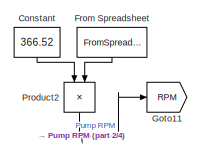
[diagram: root canvas - part 1/4, top left region]
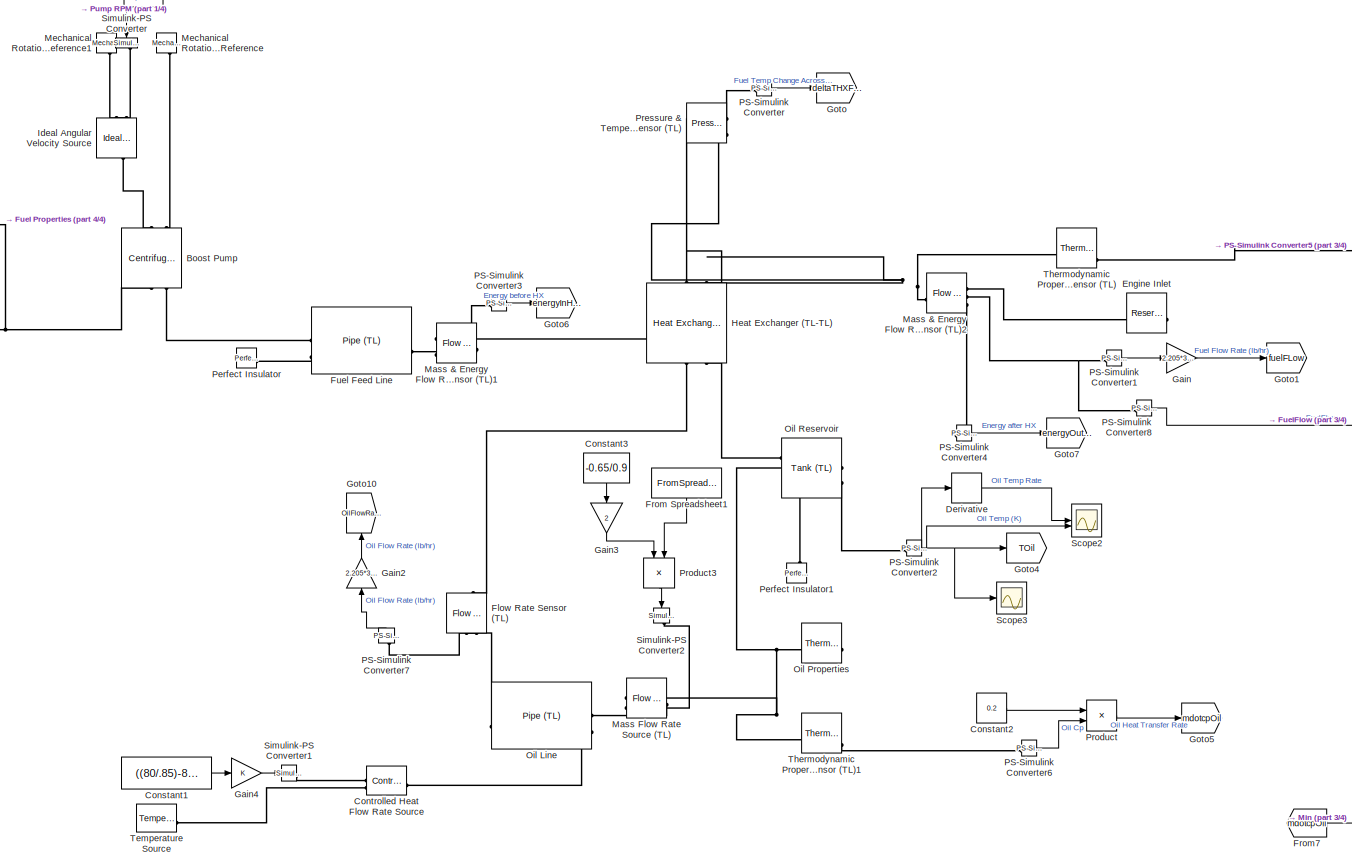
[diagram: root canvas - part 2/4, center side, full height]
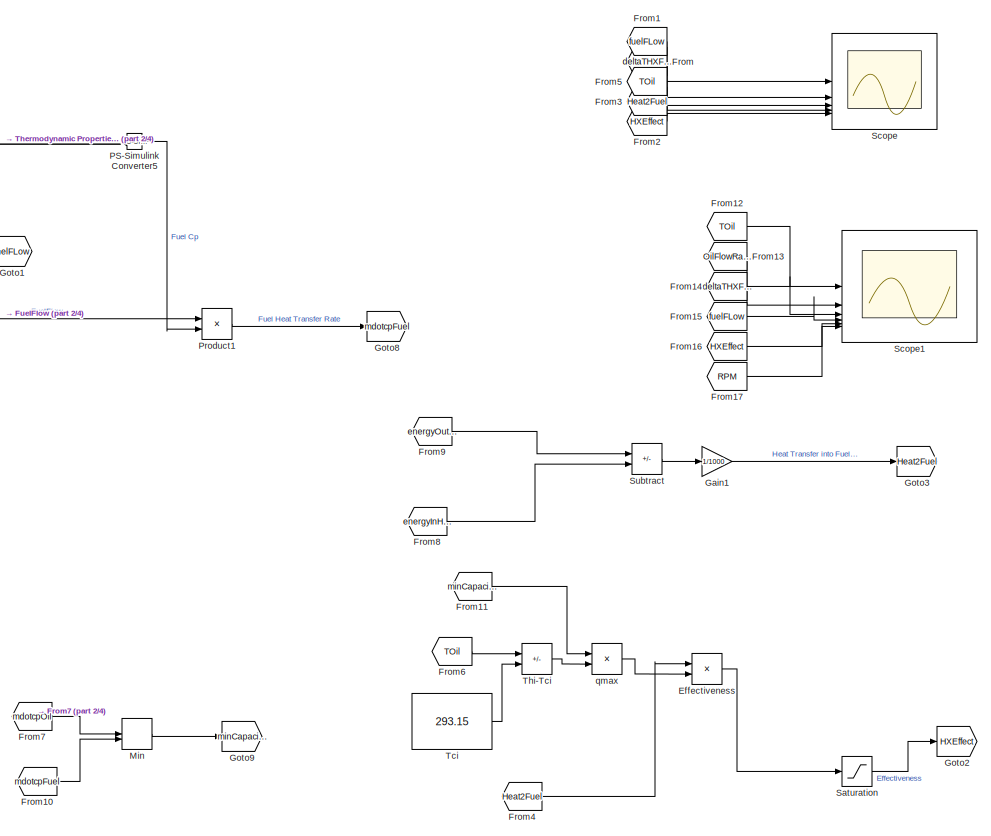
[diagram: root canvas - part 3/4, right side, full height]
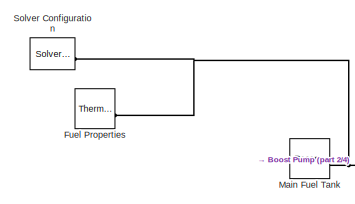
[diagram: root canvas - part 4/4, middle left region]
MODEL slx_5ee96331e3f0
KIND model
CONFIG AbsTol = auto
CONFIG EnableMultiTasking = off
CONFIG FixedStep = auto
CONFIG MaxStep = auto
CONFIG MinStep = auto
CONFIG RelTol = 1e-3
CONFIG SampleTimeConstraint = Unconstrained
CONFIG SolverName = VariableStepAuto
CONFIG StartTime = 0.0
CONFIG StopTime = 3*3600
BLOCK [Reference] Boost Pump  REF=SimscapeFluids_lib/Thermal Liquid/Pumps & Motors/Centrifugal Pump
(TL)
  NameLocation = right
  SourceBlock = SimscapeFluids_lib/Thermal Liquid/Pumps & Motors/Centrifugal Pump\n(TL)
  SourceType = Centrifugal Pump\n(TL)
BLOCK [Constant] Constant
  NameLocation = left
  Value = 366.52
BLOCK [Constant] Constant1
  Value = ((80/.85)-80)*0.8*1000
BLOCK [Constant] Constant2
  Value = 0.2
BLOCK [Constant] Constant3
  NameLocation = left
  Value = -0.65/0.9
BLOCK [Reference] Controlled Heat Flow Rate Source  REF=fl_lib/Thermal/Thermal Sources/Controlled Heat Flow
Rate Source
  SourceBlock = fl_lib/Thermal/Thermal Sources/Controlled Heat Flow\nRate Source
  SourceType = Controlled Heat Flow\nRate Source
BLOCK [Derivative] Derivative
BLOCK [Product] Effectiveness
  Inputs = */
BLOCK [Reference] Engine Inlet  REF=fl_lib/Thermal Liquid/Elements/Reservoir (TL)
  NameLocation = top
  SourceBlock = fl_lib/Thermal Liquid/Elements/Reservoir (TL)
  SourceType = Reservoir (TL)
BLOCK [Reference] Flow Rate Sensor (TL)  REF=fl_lib/Thermal Liquid/Sensors/Flow Rate Sensor
(TL)
  NameLocation = left
  SourceBlock = fl_lib/Thermal Liquid/Sensors/Flow Rate Sensor\n(TL)
  SourceType = Flow Rate Sensor\n(TL)
BLOCK [From] From
  GotoTag = deltaTHXFuel
BLOCK [FromSpreadsheet] From Spreadsheet
  FileName = RPM_data.xls
  NameLocation = left
BLOCK [FromSpreadsheet] From Spreadsheet1
  FileName = RPM_data.xls
  NameLocation = left
BLOCK [From] From1
  GotoTag = fuelFLow
BLOCK [From] From10
  GotoTag = mdotcpFuel
BLOCK [From] From11
  GotoTag = minCapacitance
BLOCK [From] From12
  GotoTag = TOil
BLOCK [From] From13
  GotoTag = OilFlowRate
BLOCK [From] From14
  GotoTag = deltaTHXFuel
BLOCK [From] From15
  GotoTag = fuelFLow
BLOCK [From] From16
  GotoTag = HXEffect
BLOCK [From] From17
  GotoTag = RPM
BLOCK [From] From2
  GotoTag = HXEffect
BLOCK [From] From3
  GotoTag = Heat2Fuel
BLOCK [From] From4
  GotoTag = Heat2Fuel
BLOCK [From] From5
  GotoTag = TOil
BLOCK [From] From6
  GotoTag = TOil
BLOCK [From] From7
  GotoTag = mdotcpOil
BLOCK [From] From8
  GotoTag = energyInHXFuel
BLOCK [From] From9
  GotoTag = energyOutHXFuel
BLOCK [Reference] Fuel Feed Line  REF=fl_lib/Thermal Liquid/Elements/Pipe (TL)
  SourceBlock = fl_lib/Thermal Liquid/Elements/Pipe (TL)
  SourceType = Pipe (TL)
BLOCK [Reference] Fuel Properties  REF=SimscapeFluids_lib/Thermal Liquid/Utilities/Thermal Liquid
Properties (TL)
  SourceBlock = SimscapeFluids_lib/Thermal Liquid/Utilities/Thermal Liquid\nProperties (TL)
  SourceType = Thermal Liquid\nProperties (TL)
BLOCK [Gain] Gain
  Gain = 2.205*3600
BLOCK [Gain] Gain1
  Gain = 1/1000
BLOCK [Gain] Gain2
  Gain = 2.205*3600
  NameLocation = right
BLOCK [Gain] Gain3
  Gain = 2
  NameLocation = left
BLOCK [Gain] Gain4
BLOCK [Goto] Goto
  GotoTag = deltaTHXFuel
BLOCK [Goto] Goto1
  GotoTag = fuelFLow
BLOCK [Goto] Goto10
  GotoTag = OilFlowRate
  NameLocation = right
BLOCK [Goto] Goto11
  GotoTag = RPM
BLOCK [Goto] Goto2
  GotoTag = HXEffect
BLOCK [Goto] Goto3
  GotoTag = Heat2Fuel
BLOCK [Goto] Goto4
  GotoTag = TOil
BLOCK [Goto] Goto5
  GotoTag = mdotcpOil
BLOCK [Goto] Goto6
  GotoTag = energyInHXFuel
BLOCK [Goto] Goto7
  GotoTag = energyOutHXFuel
BLOCK [Goto] Goto8
  GotoTag = mdotcpFuel
BLOCK [Goto] Goto9
  GotoTag = minCapacitance
BLOCK [Reference] Heat Exchanger (TL-TL)  REF=SimscapeFluids_lib/Heat Exchangers/Thermal Liquid/Heat Exchanger
(TL-TL)
  NameLocation = right
  SourceBlock = SimscapeFluids_lib/Heat Exchangers/Thermal Liquid/Heat Exchanger\n(TL-TL)
  SourceType = Heat Exchanger\n(TL-TL)
BLOCK [Reference] Ideal Angular Velocity Source  REF=fl_lib/Mechanical/Mechanical Sources/Ideal Angular
Velocity Source
  NameLocation = left
  SourceBlock = fl_lib/Mechanical/Mechanical Sources/Ideal Angular\nVelocity Source
  SourceType = Ideal Angular\nVelocity Source
BLOCK [Reference] Main Fuel Tank  REF=fl_lib/Thermal Liquid/Elements/Reservoir (TL)
  SourceBlock = fl_lib/Thermal Liquid/Elements/Reservoir (TL)
  SourceType = Reservoir (TL)
BLOCK [Reference] Mass & Energy Flow Rate Sensor (TL)1  REF=fl_lib/Thermal Liquid/Sensors/Flow Rate Sensor
(TL)
  SourceBlock = fl_lib/Thermal Liquid/Sensors/Flow Rate Sensor\n(TL)
  SourceType = Flow Rate Sensor\n(TL)
BLOCK [Reference] Mass & Energy Flow Rate Sensor (TL)2  REF=fl_lib/Thermal Liquid/Sensors/Flow Rate Sensor
(TL)
  SourceBlock = fl_lib/Thermal Liquid/Sensors/Flow Rate Sensor\n(TL)
  SourceType = Flow Rate Sensor\n(TL)
BLOCK [Reference] Mass Flow Rate Source (TL)  REF=fl_lib/Thermal Liquid/Sources/Flow Rate Source
(TL)
  NameLocation = top
  SourceBlock = fl_lib/Thermal Liquid/Sources/Flow Rate Source\n(TL)
  SourceType = Flow Rate Source\n(TL)
BLOCK [Reference] Mechanical Rotational Reference  REF=fl_lib/Mechanical/Rotational Elements/Mechanical
Rotational Reference
  NameLocation = left
  SourceBlock = fl_lib/Mechanical/Rotational Elements/Mechanical\nRotational Reference
  SourceType = Mechanical\nRotational Reference
BLOCK [Reference] Mechanical Rotational Reference1  REF=fl_lib/Mechanical/Rotational Elements/Mechanical
Rotational Reference
  NameLocation = left
  SourceBlock = fl_lib/Mechanical/Rotational Elements/Mechanical\nRotational Reference
  SourceType = Mechanical\nRotational Reference
BLOCK [MinMax] Min
  Inputs = 2
BLOCK [Reference] Oil Line  REF=fl_lib/Thermal Liquid/Elements/Pipe (TL)
  NameLocation = top
  SourceBlock = fl_lib/Thermal Liquid/Elements/Pipe (TL)
  SourceType = Pipe (TL)
BLOCK [Reference] Oil Properties  REF=SimscapeFluids_lib/Thermal Liquid/Utilities/Thermal Liquid
Properties (TL)
  NameLocation = top
  SourceBlock = SimscapeFluids_lib/Thermal Liquid/Utilities/Thermal Liquid\nProperties (TL)
  SourceType = Thermal Liquid\nProperties (TL)
BLOCK [Reference] Oil Reservoir  REF=SimscapeFluids_lib/Thermal Liquid/Tanks & Accumulators/Tank (TL)
  SourceBlock = SimscapeFluids_lib/Thermal Liquid/Tanks & Accumulators/Tank (TL)
  SourceType = Tank (TL)
BLOCK [Reference] PS-Simulink Converter  REF=nesl_utility/PS-Simulink
Converter
  SourceBlock = nesl_utility/PS-Simulink\nConverter
  SourceType = PS-Simulink\nConverter
BLOCK [Reference] PS-Simulink Converter1  REF=nesl_utility/PS-Simulink
Converter
  SourceBlock = nesl_utility/PS-Simulink\nConverter
  SourceType = PS-Simulink\nConverter
BLOCK [Reference] PS-Simulink Converter2  REF=nesl_utility/PS-Simulink
Converter
  SourceBlock = nesl_utility/PS-Simulink\nConverter
  SourceType = PS-Simulink\nConverter
BLOCK [Reference] PS-Simulink Converter3  REF=nesl_utility/PS-Simulink
Converter
  SourceBlock = nesl_utility/PS-Simulink\nConverter
  SourceType = PS-Simulink\nConverter
BLOCK [Reference] PS-Simulink Converter4  REF=nesl_utility/PS-Simulink
Converter
  SourceBlock = nesl_utility/PS-Simulink\nConverter
  SourceType = PS-Simulink\nConverter
BLOCK [Reference] PS-Simulink Converter5  REF=nesl_utility/PS-Simulink
Converter
  SourceBlock = nesl_utility/PS-Simulink\nConverter
  SourceType = PS-Simulink\nConverter
BLOCK [Reference] PS-Simulink Converter6  REF=nesl_utility/PS-Simulink
Converter
  SourceBlock = nesl_utility/PS-Simulink\nConverter
  SourceType = PS-Simulink\nConverter
BLOCK [Reference] PS-Simulink Converter7  REF=nesl_utility/PS-Simulink
Converter
  NameLocation = right
  SourceBlock = nesl_utility/PS-Simulink\nConverter
  SourceType = PS-Simulink\nConverter
BLOCK [Reference] PS-Simulink Converter8  REF=nesl_utility/PS-Simulink
Converter
  SourceBlock = nesl_utility/PS-Simulink\nConverter
  SourceType = PS-Simulink\nConverter
BLOCK [Reference] Perfect Insulator  REF=fl_lib/Thermal/Thermal Elements/Perfect Insulator
  SourceBlock = fl_lib/Thermal/Thermal Elements/Perfect Insulator
  SourceType = Perfect Insulator
BLOCK [Reference] Perfect Insulator1  REF=fl_lib/Thermal/Thermal Elements/Perfect Insulator
  NameLocation = right
  SourceBlock = fl_lib/Thermal/Thermal Elements/Perfect Insulator
  SourceType = Perfect Insulator
BLOCK [Reference] Pressure & Temperature Sensor (TL)  REF=fl_lib/Thermal Liquid/Sensors/Pressure &
Temperature Sensor
(TL)
  SourceBlock = fl_lib/Thermal Liquid/Sensors/Pressure &\nTemperature Sensor\n(TL)
  SourceType = Pressure &\nTemperature Sensor\n(TL)
BLOCK [Product] Product
BLOCK [Product] Product1
BLOCK [Product] Product2
  NameLocation = left
BLOCK [Product] Product3
  NameLocation = left
BLOCK [Saturate] Saturation
  LowerLimit = 0
  UpperLimit = 1
BLOCK [Scope] Scope
  ActiveDisplayYMaximum = 1
  ActiveDisplayYMinimum = -1
  AxesScaling = Auto
  Floating = off
  GraphicalSettings = {"Style":{"BackgroundColor":[0.12941176470588237,0.12941176470588237,0.12941176470588237],"AxesColor":[0.07058823529411765,0.07058823529411765,0.07058823529411765],"LabelsColor":[0.8509803921568627,0.8509803921568627,0.8509803921568627],"PreserveColors":false,"Visible":[true,true,true,true,true],"LineStyle":["-","-","-","-","-"],"LineWidth":[1.5,1.5,1.5,1.5,1.5],"BarWidth":[0.9,0.9,0.9,0.9,0.9],"L...<+4121ch>
  LayoutDimensionsString = [3 2]
  MultipleDisplayCache = [{"MaxYLimMag":1,"MaxYLimReal":1,"MinYLimMag":0,"MinYLimReal":-1,"PlotAsMagnitudePhase":false,"ShowGrid":true,"ShowLegend":true,"Title":"%<SignalLabel>","YLabel":""},{"MaxYLimMag":1,"MaxYLimReal":1,"MinYLimMag":0,"MinYLimReal":-1,"PlotAsMagnitudePhase":false,"ShowGrid":true,"ShowLegend":true,"Title":"%<SignalLabel>","YLabel":""},{"MaxYLimMag":1,"MaxYLimReal":1,"MinYLimMag":0,"MinYLimReal":-1,"Plot...<+592ch>
  NumInputPorts = 5
  ScopeFrameLocation = window
  ShowLegend = on
  WasSavedAsWebScope = on
  WindowPosition = [179.000000,67.000000,1220.000000,452.000000,]
BLOCK [Scope] Scope1
  ActiveDisplayString = 6
  ActiveDisplayYMaximum = 343.6125
  ActiveDisplayYMinimum = 206.1675
  DataLoggingVariableName = ScopeData1
  DisplayFullPath = on
  Floating = off
  GraphicalSettings = {"Style":{"BackgroundColor":[0.12941176470588237,0.12941176470588237,0.12941176470588237],"AxesColor":[0.07058823529411765,0.07058823529411765,0.07058823529411765],"LabelsColor":[0.8509803921568627,0.8509803921568627,0.8509803921568627],"PreserveColors":false,"Visible":[true,true,true,true,true,true],"LineStyle":["-","-","-","-","-","-"],"LineWidth":[1.5,1.5,1.5,1.5,1.5,1.5],"BarWidth":[0.9,0.9,0....<+4246ch>
  LayoutDimensionsString = [3, 2]
  MultipleDisplayCache = [{"MaxYLimMag":329.11730586074077,"MaxYLimReal":325.98346938915239,"MinYLimMag":289.15404377743442,"MinYLimReal":320.35398128793514,"PlotAsMagnitudePhase":false,"ShowGrid":true,"ShowLegend":true,"Title":"%<SignalLabel>","YLabel":""},{"MaxYLimMag":5804.7939161685208,"MaxYLimReal":6538.7235474624922,"MinYLimMag":0,"MinYLimReal":-3466.9882193071253,"PlotAsMagnitudePhase":false,"ShowGrid":true,"ShowLe...<+861ch>
  NumInputPorts = 6
  ScopeFrameLocation = window
  ShowLegend = on
  WasSavedAsWebScope = on
  WindowPosition = [1.000000,49.000000,1536.000000,793.000000,]
BLOCK [Scope] Scope2
  ActiveDisplayString = 2
  ActiveDisplayYMaximum = 308.94320494143966
  ActiveDisplayYMinimum = 291.39561054622277
  DataLoggingVariableName = ScopeData2
  Floating = off
  GraphicalSettings = {"Style":{"BackgroundColor":[0.12941176470588237,0.12941176470588237,0.12941176470588237],"AxesColor":[0.07058823529411765,0.07058823529411765,0.07058823529411765],"LabelsColor":[0.8509803921568627,0.8509803921568627,0.8509803921568627],"PreserveColors":false,"Visible":[true,true],"LineStyle":["-","-"],"LineWidth":[1.5,1.5],"BarWidth":[0.9,0.9],"LineColor":["auto","auto"],"LineFaceAlpha":[1,1],"Li...<+2484ch>
  LayoutDimensionsString = [2, 1]
  MultipleDisplayCache = [{"MaxYLimMag":0.30166250960260421,"MaxYLimReal":0.055350169091285983,"MinYLimMag":0,"MinYLimReal":-0.020421718312914866,"PlotAsMagnitudePhase":false,"ShowGrid":true,"ShowLegend":true,"Title":"%<SignalLabel>","YLabel":""},{"MaxYLimMag":308.94320494143966,"MaxYLimReal":308.94320494143966,"MinYLimMag":291.39561054622277,"MinYLimReal":291.39561054622277,"PlotAsMagnitudePhase":false,"ShowGrid":true,"S...<+54ch>
  NumInputPorts = 2
  OpenAtSimulationStart = on
  ScopeFrameLocation = window
  ShowLegend = on
  WasSavedAsWebScope = on
  WindowPosition = [1.000000,49.000000,1536.000000,793.000000,]
BLOCK [Scope] Scope3
  ActiveDisplayYMaximum = 326.28561856844368
  ActiveDisplayYMinimum = 289.46867569656331
  DataLoggingVariableName = ScopeData3
  Floating = off
  GraphicalSettings = {"Style":{"BackgroundColor":[0.12941176470588237,0.12941176470588237,0.12941176470588237],"AxesColor":[0.07058823529411765,0.07058823529411765,0.07058823529411765],"LabelsColor":[0.8509803921568627,0.8509803921568627,0.8509803921568627],"PreserveColors":false,"Visible":[true],"LineStyle":["-"],"LineWidth":[1.5],"BarWidth":[0.9],"LineColor":["auto"],"LineFaceAlpha":[1],"LineEdgeAlpha":[1],"Marker":...<+2036ch>
  MultipleDisplayCache = [{"MaxYLimMag":326.28561856844368,"MaxYLimReal":326.28561856844368,"MinYLimMag":289.46867569656331,"MinYLimReal":289.46867569656331,"PlotAsMagnitudePhase":false,"ShowGrid":true,"ShowLegend":false,"Title":"%<SignalLabel>","YLabel":""}]
  NumInputPorts = 1
  ScopeFrameLocation = window
  Visible = on
  WasSavedAsWebScope = on
  WindowPosition = [1.000000,49.000000,1536.000000,793.000000,]
BLOCK [Reference] Simulink-PS Converter  REF=nesl_utility/Simulink-PS
Converter
  NameLocation = left
  SourceBlock = nesl_utility/Simulink-PS\nConverter
  SourceType = Simulink-PS\nConverter
BLOCK [Reference] Simulink-PS Converter1  REF=nesl_utility/Simulink-PS
Converter
  SourceBlock = nesl_utility/Simulink-PS\nConverter
  SourceType = Simulink-PS\nConverter
BLOCK [Reference] Simulink-PS Converter2  REF=nesl_utility/Simulink-PS
Converter
  NameLocation = left
  SourceBlock = nesl_utility/Simulink-PS\nConverter
  SourceType = Simulink-PS\nConverter
BLOCK [Reference] Solver Configuration  REF=nesl_utility/Solver
Configuration
  SourceBlock = nesl_utility/Solver\nConfiguration
  SourceType = Solver\nConfiguration
BLOCK [Sum] Subtract
  IconShape = rectangular
  Inputs = +-
BLOCK [Constant] Tci
  Value = 293.15
BLOCK [Reference] Temperature Source  REF=fl_lib/Thermal/Thermal Sources/Temperature Source
  SourceBlock = fl_lib/Thermal/Thermal Sources/Temperature Source
  SourceType = Temperature Source
BLOCK [Reference] Thermodynamic Properties Sensor (TL)  REF=fl_lib/Thermal Liquid/Sensors/Thermodynamic
Properties Sensor
(TL)
  SourceBlock = fl_lib/Thermal Liquid/Sensors/Thermodynamic\nProperties Sensor\n(TL)
  SourceType = Thermodynamic\nProperties Sensor\n(TL)
BLOCK [Reference] Thermodynamic Properties Sensor (TL)1  REF=fl_lib/Thermal Liquid/Sensors/Thermodynamic
Properties Sensor
(TL)
  SourceBlock = fl_lib/Thermal Liquid/Sensors/Thermodynamic\nProperties Sensor\n(TL)
  SourceType = Thermodynamic\nProperties Sensor\n(TL)
BLOCK [Sum] Thi-Tci
  IconShape = rectangular
  Inputs = +-
BLOCK [Product] qmax
LINE Constant1:1 -> Gain4:1
LINE Constant2:1 -> Product:1
LINE Constant3:1 -> Gain3:1
LINE Constant:1 -> Product2:1
LINE Derivative:1 -> Scope2:1
LINE Effectiveness:1 -> Saturation:1
LINE From Spreadsheet1:1 -> Product3:2
LINE From Spreadsheet:1 -> Product2:2
LINE From10:1 -> Min:2
LINE From11:1 -> qmax:1
LINE From12:1 -> Scope1:1
LINE From13:1 -> Scope1:2
LINE From14:1 -> Scope1:3
LINE From15:1 -> Scope1:4
LINE From16:1 -> Scope1:5
LINE From17:1 -> Scope1:6
LINE From1:1 -> Scope:1
LINE From2:1 -> Scope:5
LINE From3:1 -> Scope:4
LINE From4:1 -> Effectiveness:1
LINE From5:1 -> Scope:3
LINE From6:1 -> Thi-Tci:1
LINE From7:1 -> Min:1
LINE From8:1 -> Subtract:2
LINE From9:1 -> Subtract:1
LINE From:1 -> Scope:2
LINE Gain1:1 -> Goto3:1
LINE Gain2:1 -> Goto10:1
LINE Gain3:1 -> Product3:1
LINE Gain4:1 -> Simulink-PS Converter1:1
LINE Gain:1 -> Goto1:1
LINE Min:1 -> Goto9:1
LINE PS-Simulink Converter1:1 -> Gain:1
NET PS-Simulink Converter2:1 -> Derivative:1, Goto4:1, Scope2:2, Scope3:1
LINE PS-Simulink Converter3:1 -> Goto6:1
LINE PS-Simulink Converter4:1 -> Goto7:1
LINE PS-Simulink Converter5:1 -> Product1:2
LINE PS-Simulink Converter6:1 -> Product:2
LINE PS-Simulink Converter7:1 -> Gain2:1
LINE PS-Simulink Converter8:1 -> Product1:1
LINE PS-Simulink Converter:1 -> Goto:1
LINE Product1:1 -> Goto8:1
NET Product2:1 -> Goto11:1, Simulink-PS Converter:1
LINE Product3:1 -> Simulink-PS Converter2:1
LINE Product:1 -> Goto5:1
LINE Saturation:1 -> Goto2:1
LINE Subtract:1 -> Gain1:1
LINE Tci:1 -> Thi-Tci:2
LINE Thi-Tci:1 -> qmax:2
LINE qmax:1 -> Effectiveness:2
PNET net1: Boost Pump:LConn1 -- Fuel Properties:RConn1 -- Main Fuel Tank:LConn1 -- Solver Configuration:RConn1
PLINE Boost Pump:LConn2 -- Fuel Feed Line:LConn1
PLINE Boost Pump:RConn1 -- Ideal Angular Velocity Source:LConn1
PLINE Boost Pump:RConn2 -- Mechanical Rotational Reference:LConn1
PLINE Controlled Heat Flow Rate Source:LConn1 -- Oil Line:LConn2
PLINE Controlled Heat Flow Rate Source:RConn1 -- Simulink-PS Converter1:RConn1
PLINE Controlled Heat Flow Rate Source:RConn2 -- Temperature Source:LConn1
PLINE Engine Inlet:LConn1 -- Mass & Energy Flow Rate Sensor (TL)2:RConn1
PLINE Flow Rate Sensor (TL):LConn1 -- Heat Exchanger (TL-TL):LConn1
PLINE Flow Rate Sensor (TL):RConn1 -- Oil Line:RConn1
PLINE Flow Rate Sensor (TL):RConn2 -- PS-Simulink Converter7:LConn1
PLINE Fuel Feed Line:LConn2 -- Perfect Insulator:LConn1
PLINE Fuel Feed Line:RConn1 -- Mass & Energy Flow Rate Sensor (TL)1:LConn1
PLINE Heat Exchanger (TL-TL):LConn2 -- Oil Reservoir:LConn1
PNET net2: Heat Exchanger (TL-TL):RConn1 -- Mass & Energy Flow Rate Sensor (TL)1:RConn1 -- Pressure & Temperature Sensor (TL):RConn1
PNET net3: Heat Exchanger (TL-TL):RConn2 -- Mass & Energy Flow Rate Sensor (TL)2:LConn1 -- Pressure & Temperature Sensor (TL):LConn1 -- Thermodynamic Properties Sensor (TL):LConn1
PLINE Ideal Angular Velocity Source:RConn1 -- Simulink-PS Converter:RConn1
PLINE Ideal Angular Velocity Source:RConn2 -- Mechanical Rotational Reference1:LConn1
PLINE Mass & Energy Flow Rate Sensor (TL)1:RConn3 -- PS-Simulink Converter3:LConn1
PNET net4: Mass & Energy Flow Rate Sensor (TL)2:RConn2 -- PS-Simulink Converter1:LConn1 -- PS-Simulink Converter8:LConn1
PLINE Mass & Energy Flow Rate Sensor (TL)2:RConn3 -- PS-Simulink Converter4:LConn1
PNET net5: Mass Flow Rate Source (TL):LConn1 -- Oil Properties:RConn1 -- Oil Reservoir:LConn2 -- Thermodynamic Properties Sensor (TL)1:LConn1
PLINE Mass Flow Rate Source (TL):LConn2 -- Simulink-PS Converter2:RConn1
PLINE Mass Flow Rate Source (TL):RConn1 -- Oil Line:LConn1
PLINE Oil Reservoir:RConn1 -- Perfect Insulator1:LConn1
PLINE Oil Reservoir:RConn2 -- PS-Simulink Converter2:LConn1
PLINE PS-Simulink Converter5:LConn1 -- Thermodynamic Properties Sensor (TL):RConn3
PLINE PS-Simulink Converter6:LConn1 -- Thermodynamic Properties Sensor (TL)1:RConn3
PLINE PS-Simulink Converter:LConn1 -- Pressure & Temperature Sensor (TL):RConn3
note: NET lines group one-source signal fan-out (src -> all destinations, sorted); 1:1 wires keep LINE; PNET lines group multi-terminal physical nets as a canonical sorted terminal list (undirected conserving connections); 2-terminal nets keep the pairwise PLINE form
